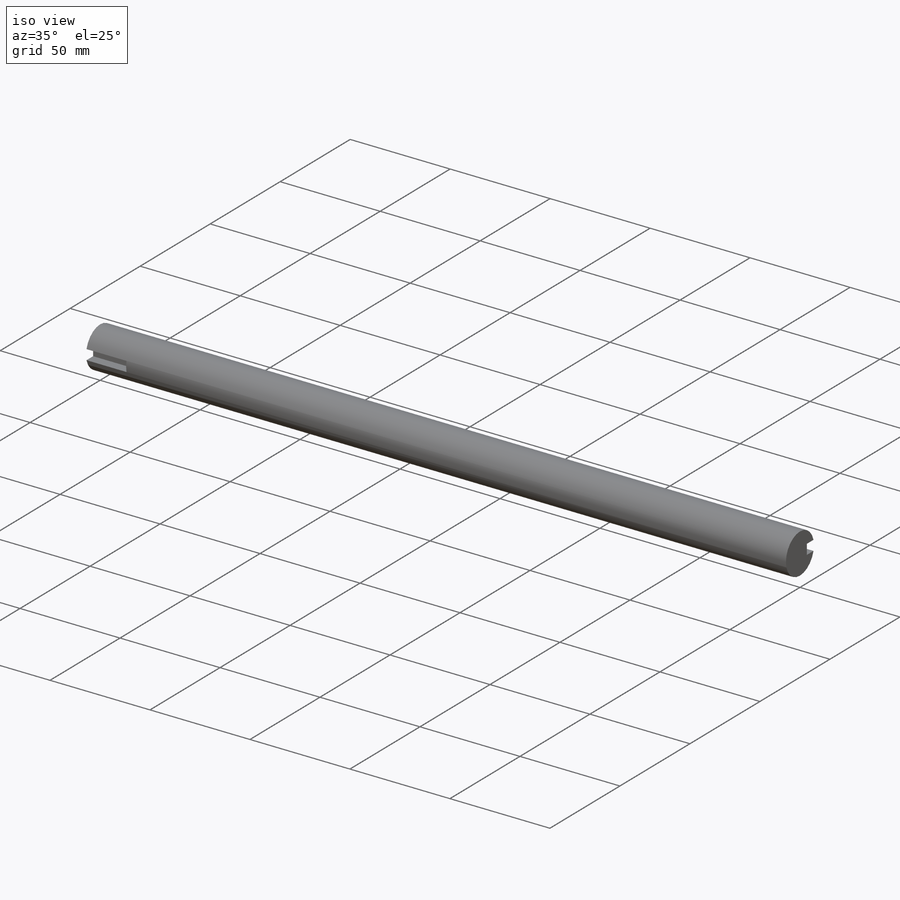
[diagram: iso view]
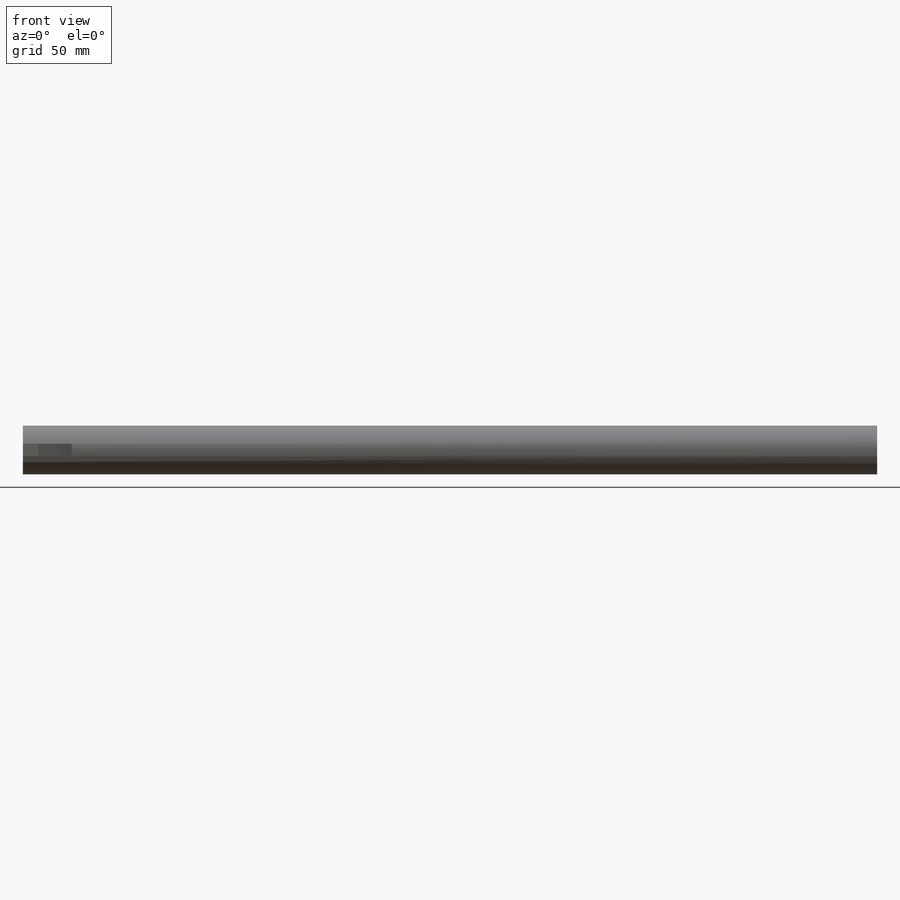
[diagram: front view]
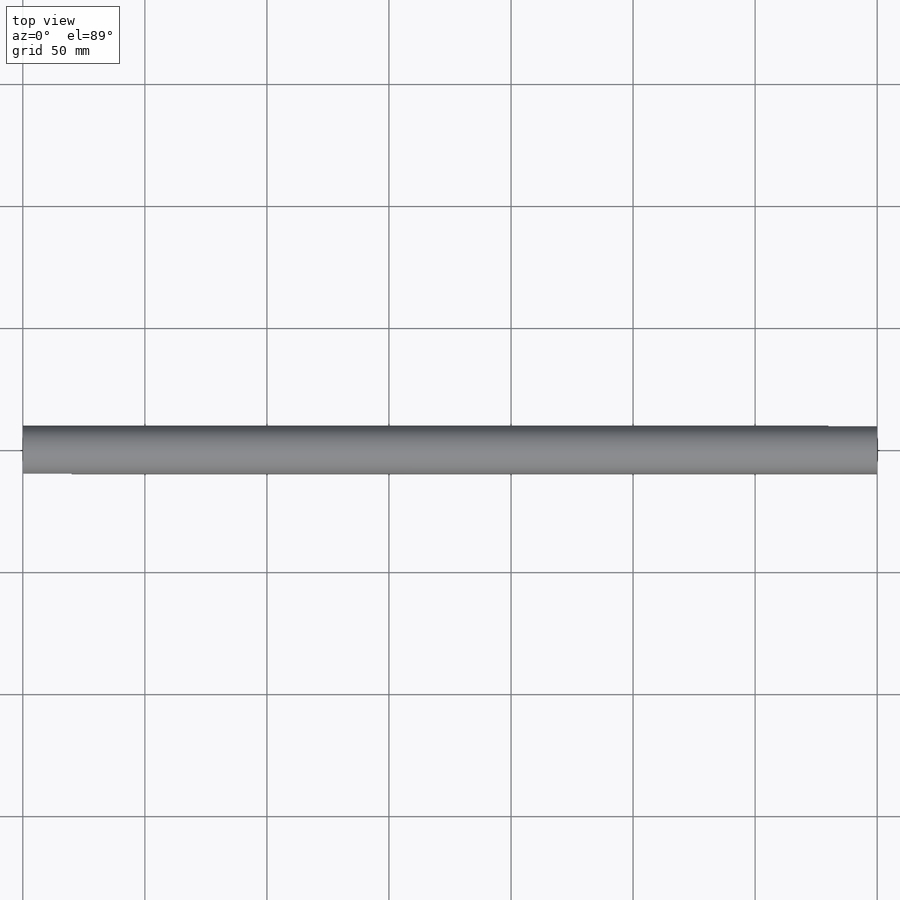
[diagram: top view]
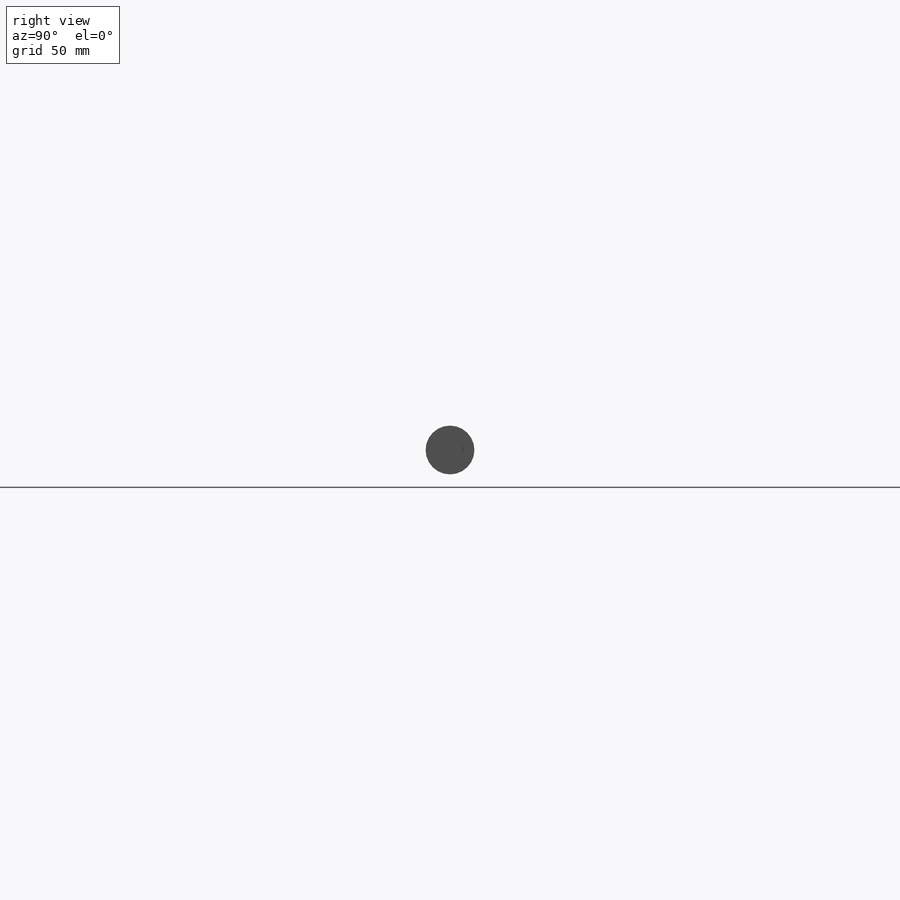
[diagram: right view]
SOLIDWORKS PART (.sldprt)
format: sldprt  version: not decoded by parser v0  size: 157,184 bytes
history: native  units: mm
features: sketch x3, cut_extrude x2, material x1, extrude x1 (+13 scaffold rows collapsed)
feature tree (20):
  scaffold x13  (default folders/planes/origin — collapsed)
  material  "Material <not specified>"
  sketch  "Sketch1"  dims[20=20.0mm]
  extrude  "Boss-Extrude1"  Depth=350mm
  sketch  "Sketch2"  dims[c1.D1=~5.020144mm c1.D2=~8.531152mm c2.D1=5.0mm c2.D2=10.0mm]
  cut_extrude  "Cut-Extrude1"  Depth=20mm
  sketch  "Sketch3"  dims[c1.D1=~2.662521mm c1.D2=~6.704684mm c2.D1=5.0mm c2.1=10.0mm]
  cut_extrude  "Cut-Extrude2"  Depth=20mm
decode coverage: 6 of 6 modeling features carry decoded parameters
note: ~ marks probable driven/reference dimensions
note: suppression state not decoded; provenance and decode notes live in map.json
